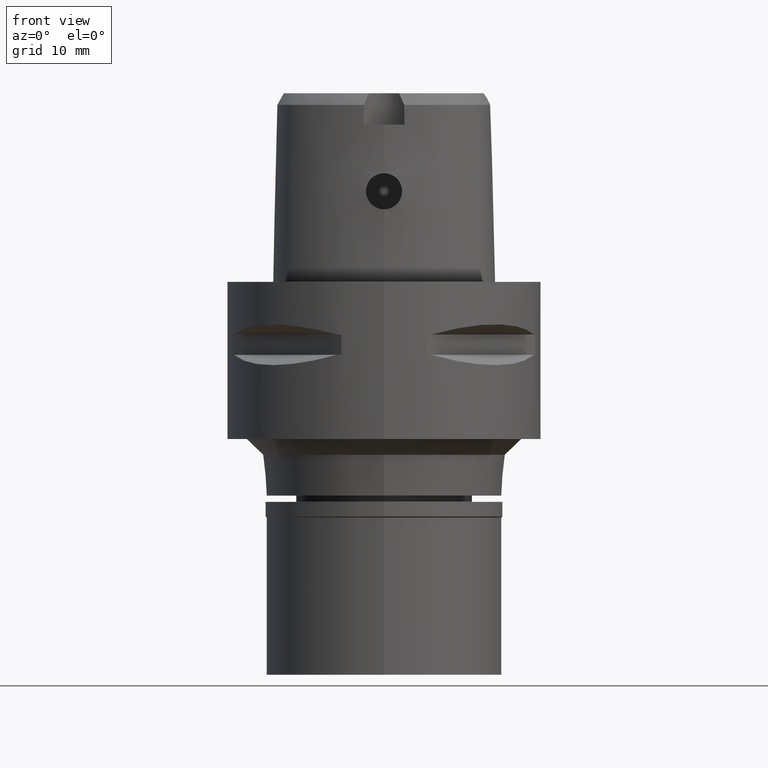
[diagram: clean part render]
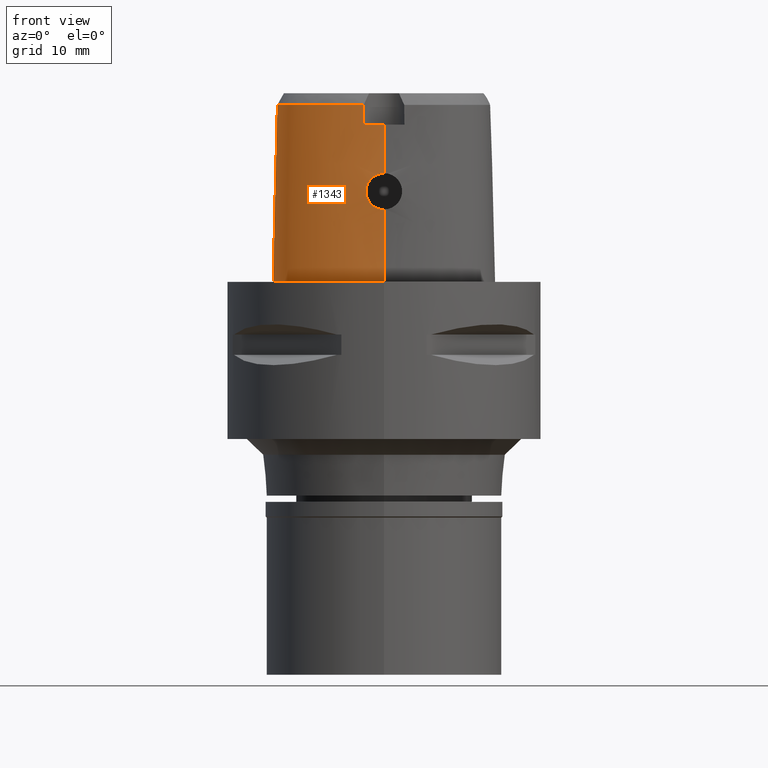
[diagram: same view with one face highlighted and labeled with its STEP entity id]
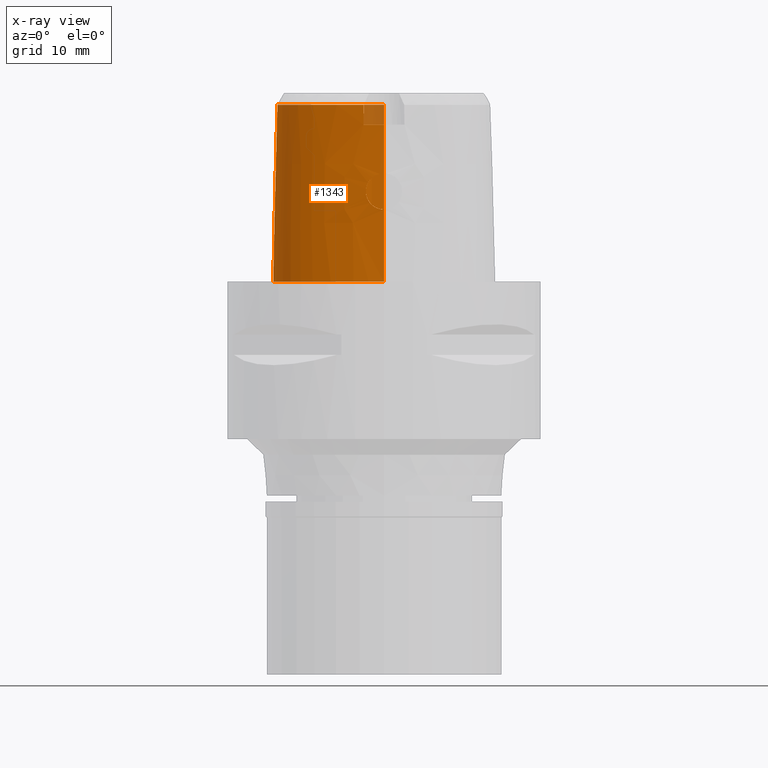
[diagram: x-ray of the same camera — body ghosted, the highlighted face saturated]
A machine part, front view. The second image highlights one B-rep face of the part: STEP entity #1343.
The next image is the same camera in x-ray: the body ghosted, the highlighted face saturated — about 2% of this face is hidden behind the body in this view.
In plain terms, the highlighted face is a freeform B-spline surface patch.
Its self-contained STEP definition (entity closure, byte-faithful):
#3 = CARTESIAN_POINT ( 'NONE',  ( -12.81132618910000076, -7.396622623712000966, 7.356785196705000196 ) ) ;
#9 = CARTESIAN_POINT ( 'NONE',  ( -2.603602034519999719, -12.50961198144999997, 20.00000000000000000 ) ) ;
#13 = CARTESIAN_POINT ( 'NONE',  ( -9.170754357849521199, 9.963637495875273586, 2.544722114234884702E-07 ) ) ;
#19 = CARTESIAN_POINT ( 'NONE',  ( -9.070417774769000019, -10.46386417451000028, 22.97118643052999687 ) ) ;
#25 = CARTESIAN_POINT ( 'NONE',  ( -1.969151562591273663, -12.81878448191198672, 10.31136768718369545 ) ) ;
#39 = CARTESIAN_POINT ( 'NONE',  ( -9.029359443559000553, 9.844403358273998705, 7.356785196705000196 ) ) ;
#46 = CARTESIAN_POINT ( 'NONE',  ( -0.9094609401181773523, -12.90997073725083055, 9.387431234174231420 ) ) ;
#76 = CARTESIAN_POINT ( 'NONE',  ( -14.05597388953954230, -4.368733592847993563, 2.544722114234884702E-07 ) ) ;
#152 = CARTESIAN_POINT ( 'NONE',  ( 0.5714334852117000096, -12.77845896517000135, 15.16398581362000009 ) ) ;
#168 = CARTESIAN_POINT ( 'NONE',  ( -1.745769949806743382, -12.61172391797737724, 19.99999964621428461 ) ) ;
#180 = CARTESIAN_POINT ( 'NONE',  ( -1.634303316923999994, 14.85806844625000167, -0.4504154202064000190 ) ) ;
#200 = CARTESIAN_POINT ( 'NONE',  ( -8.737913808020804751, 9.598635897784548732, 22.52071717950011731 ) ) ;
#231 = CARTESIAN_POINT ( 'NONE',  ( -13.60847657048246084, -2.623199557594069642, 22.52071717950011731 ) ) ;
#245 = CARTESIAN_POINT ( 'NONE',  ( -0.9448229129271795701, -12.80325335383371232, 13.59813410706257919 ) ) ;
#255 = CARTESIAN_POINT ( 'NONE',  ( -3.539803248252299639, 13.67924950902899006, 22.52071717950011731 ) ) ;
#266 = CARTESIAN_POINT ( 'NONE',  ( -3.534957195059000412, 13.66895452561000113, 22.97118643052999687 ) ) ;
#292 = CARTESIAN_POINT ( 'NONE',  ( -0.3709813349679000338, 14.59945308679999876, 15.16398581362000009 ) ) ;
#299 = CARTESIAN_POINT ( 'NONE',  ( -2.245603534414450042, -12.77547641080668228, 10.99707330927152427 ) ) ;
#314 = CARTESIAN_POINT ( 'NONE',  ( -10.45540628304999942, -9.534714902356999033, 22.97118643052999687 ) ) ;
#320 = CARTESIAN_POINT ( 'NONE',  ( -1.030987739343823817, -12.90333795298401753, 9.443720710652016237 ) ) ;
#331 = CARTESIAN_POINT ( 'NONE',  ( -13.79295327742000055, -2.621895083540000115, 15.16398581362000009 ) ) ;
#336 = CARTESIAN_POINT ( 'NONE',  ( -1.718104249315451248, -12.84797894397791040, 9.970099457365206419 ) ) ;
#347 = CARTESIAN_POINT ( 'NONE',  ( -12.97089750941041864, -7.488751168688340343, 2.544722114234884702E-07 ) ) ;
#358 = CARTESIAN_POINT ( 'NONE',  ( -13.56059764518999877, -5.684126879546000488, 7.356785196705000196 ) ) ;
#364 = CARTESIAN_POINT ( 'NONE',  ( -1.505001200655944560, -12.86943791852782759, 9.752156969248664709 ) ) ;
#381 = CARTESIAN_POINT ( 'NONE',  ( -7.165542351824000455, -12.04243712161000168, -0.4504154202064000190 ) ) ;
#386 = CARTESIAN_POINT ( 'NONE',  ( -1.123943696500318445, -12.89774608795634236, 9.492107695863102990 ) ) ;
#397 = CARTESIAN_POINT ( 'NONE',  ( -12.67101786763999982, 2.764037747060000161, 22.97118643052999687 ) ) ;
#533 = CARTESIAN_POINT ( 'NONE',  ( -13.19588017074667086, -5.576003004572317678, 22.52071717950011731 ) ) ;
#570 = CARTESIAN_POINT ( 'NONE',  ( -2.271431586346507991, -12.75091221571057609, 11.86913203842019904 ) ) ;
#600 = CARTESIAN_POINT ( 'NONE',  ( -2.117617568217390556, -12.75277667900068224, 12.39764604230459533 ) ) ;
#608 = ORIENTED_EDGE ( 'NONE', *, *, #1835, .T. ) ;
#617 = ORIENTED_EDGE ( 'NONE', *, *, #3885, .F. ) ;
#629 = CARTESIAN_POINT ( 'NONE',  ( -0.8723905964265251667, -12.80534818375293504, 13.62814720800847468 ) ) ;
#638 = CARTESIAN_POINT ( 'NONE',  ( -3.014424021963129086, -12.39773933600501188, 22.52071717950011731 ) ) ;
#648 = CARTESIAN_POINT ( 'NONE',  ( 0.2912660280116999845, 14.57955075905000086, 15.16398581362000009 ) ) ;
#653 = CARTESIAN_POINT ( 'NONE',  ( -0.5819386986818497753, -12.81237603767194777, 13.72652564638335093 ) ) ;
#672 = CARTESIAN_POINT ( 'NONE',  ( -13.67906215461000130, -4.314970299245000085, 15.16398581362000009 ) ) ;
#680 = CARTESIAN_POINT ( 'NONE',  ( -2.128793241413423409, -12.79612817070244546, 10.62919246598732315 ) ) ;
#688 = CARTESIAN_POINT ( 'NONE',  ( -2.568703252653000479, -12.45023756080000155, 22.52071717950000007 ) ) ;
#693 = CARTESIAN_POINT ( 'NONE',  ( -13.37282164521999839, -5.628458944319000068, 15.16398581362000009 ) ) ;
#699 = CARTESIAN_POINT ( 'NONE',  ( -1.673318493212271330, -12.85259581698450049, 9.921828725747491973 ) ) ;
#706 = CARTESIAN_POINT ( 'NONE',  ( -6.372642517123766837, 12.66899061996103626, 2.544722114234884702E-07 ) ) ;
#715 = CARTESIAN_POINT ( 'NONE',  ( -11.34294637552000040, 6.548859638343000000, 7.356785196705000196 ) ) ;
#720 = CARTESIAN_POINT ( 'NONE',  ( -1.924883428630888016, -12.82440318964656178, 10.24105807494909115 ) ) ;
#726 = CARTESIAN_POINT ( 'NONE',  ( -13.34121470783906283, -6.760328903660714595, 2.544722114234884702E-07 ) ) ;
#736 = CARTESIAN_POINT ( 'NONE',  ( -10.69740336607000053, -9.843145438499998789, 7.356785196705000196 ) ) ;
#741 = CARTESIAN_POINT ( 'NONE',  ( -2.100781098110155565, -12.80050632932169208, 10.56139995706970680 ) ) ;
#758 = CARTESIAN_POINT ( 'NONE',  ( -3.941817108171000061, -12.35544361517000134, 22.97118643052999687 ) ) ;
#782 = CARTESIAN_POINT ( 'NONE',  ( -1.826504515500986470, -12.83620081350063735, 10.10016303675814875 ) ) ;
#787 = CARTESIAN_POINT ( 'NONE',  ( -11.50301489618418316, 6.641268746803844714, 2.544722114234884702E-07 ) ) ;
#795 = CARTESIAN_POINT ( 'NONE',  ( 0.8491476807201999710, -12.57247798927999938, 22.97118643052999687 ) ) ;
#836 = CARTESIAN_POINT ( 'NONE',  ( -1.260417588442999891E-08, -12.66301535847000004, 19.99999996345999875 ) ) ;
#860 = CARTESIAN_POINT ( 'NONE',  ( 0.8715805128494999998, -13.15757747211999984, -0.4504154202064000190 ) ) ;
#903 = B_SPLINE_CURVE_WITH_KNOTS ( 'NONE', 3,
 ( #836, #3447, #168, #1623 ),
 .UNSPECIFIED., .F., .F.,
 ( 4, 4 ),
 ( 0.0000000000000000000, 1.000000000000000000 ),
 .UNSPECIFIED. ) ;
#925 = ORIENTED_EDGE ( 'NONE', *, *, #2914, .T. ) ;
#926 = CARTESIAN_POINT ( 'NONE',  ( -2.075653757163897772, -12.75436700818544544, 12.49185155364052413 ) ) ;
#951 = CARTESIAN_POINT ( 'NONE',  ( -1.531093129367631533, -12.78047425280173321, 13.21704160996870669 ) ) ;
#962 = CARTESIAN_POINT ( 'NONE',  ( -13.44334616472842114, -0.2854647376911818579, 22.52071717950011731 ) ) ;
#977 = CARTESIAN_POINT ( 'NONE',  ( 0.4485687364316999770, 14.76550217421000077, 7.356785196705000196 ) ) ;
#992 = CARTESIAN_POINT ( 'NONE',  ( -12.48241503204998004, -7.206725678149864756, 22.52071717950011731 ) ) ;
#1000 = CARTESIAN_POINT ( 'NONE',  ( 0.3070131592349999994, 14.96964727000000117, -0.4504154202064000190 ) ) ;
#1005 = VERTEX_POINT ( 'NONE', #3464 ) ;
#1006 = CARTESIAN_POINT ( 'NONE',  ( -2.227964660006181319, -12.74977029743578427, 12.09060403548147278 ) ) ;
#1022 = CARTESIAN_POINT ( 'NONE',  ( -11.84499494414000154, -9.036543430020000045, -0.4504154202064000190 ) ) ;
#1028 = CARTESIAN_POINT ( 'NONE',  ( -2.140846386073651963, -12.79421935293861878, 10.65923901443731836 ) ) ;
#1048 = CARTESIAN_POINT ( 'NONE',  ( -6.014683975638999591, 12.21358538580999920, 22.97118643052999687 ) ) ;
#1066 = CARTESIAN_POINT ( 'NONE',  ( -3.782076371046788399, 14.19393593168008927, 2.544722114234884702E-07 ) ) ;
#1072 = CARTESIAN_POINT ( 'NONE',  ( -13.62540794143000156, -0.2530731246365999776, 15.16398581362000009 ) ) ;
#1093 = CARTESIAN_POINT ( 'NONE',  ( -12.81560164108000066, -6.526604537076999613, 22.97118643052999687 ) ) ;
#1117 = CARTESIAN_POINT ( 'NONE',  ( -12.98066718793999996, -7.494391695232000217, -0.4504154202064000190 ) ) ;
#1145 = CARTESIAN_POINT ( 'NONE',  ( -1.640618828100756543, -12.85590380833830793, 9.888026571611279181 ) ) ;
#1150 = CARTESIAN_POINT ( 'NONE',  ( -7.161686383287101165, -12.03179218148533280, 2.544722114234884702E-07 ) ) ;
#1174 = EDGE_CURVE ( 'NONE', #1005, #4181, #4460, .T. ) ;
#1188 = EDGE_CURVE ( 'NONE', #4631, #4119, #2751, .T. ) ;
#1205 = CARTESIAN_POINT ( 'NONE',  ( -1.260417588442999891E-08, -12.66301535847000004, 19.99999996345999875 ) ) ;
#1236 = ORIENTED_EDGE ( 'NONE', *, *, #1174, .F. ) ;
#1284 = CARTESIAN_POINT ( 'NONE',  ( -6.379661316097998913, 12.67792013950000118, -0.4504154202064000190 ) ) ;
#1290 = CARTESIAN_POINT ( 'NONE',  ( -1.572442839314113661, -12.77847914798856088, 13.17862367268233648 ) ) ;
#1298 = CARTESIAN_POINT ( 'NONE',  ( -6.968888528386277592, -11.49954675419571082, 22.52071717950011731 ) ) ;
#1317 = CARTESIAN_POINT ( 'NONE',  ( -2.100682809757366432, -12.75339965040591750, 12.43682748920701542 ) ) ;
#1342 = CARTESIAN_POINT ( 'NONE',  ( -0.5074042838810919331, -12.81372059559767784, 13.74459566185632120 ) ) ;
#1343 = ADVANCED_FACE ( 'NONE', ( #3459 ), #3713, .T. ) ;
#1394 = CARTESIAN_POINT ( 'NONE',  ( -2.194313938148278798, -12.78526572574067899, 10.80969661529742076 ) ) ;
#1399 = B_SPLINE_CURVE_WITH_KNOTS ( 'NONE', 3,
 ( #3830, #638, #3475, #1298, #3507, #1984, #4240, #2383, #992, #2417, #533, #3906, #231, #962, #3198, #3856, #200, #1687, #255, #1710, #3166, #4654 ),
 .UNSPECIFIED., .F., .F.,
 ( 4, 1, 1, 1, 1, 1, 1, 1, 1, 1, 1, 1, 1, 1, 1, 1, 1, 1, 1, 4 ),
 ( 0.0000000000000000000, 0.03040433083226065647, 0.1185493916653934249, 0.1626219220818010958, 0.2066944524984203613, 0.2507669829149338780, 0.2728032481231377204, 0.2948395133313415073, 0.3168757785396512094, 0.3389120437478551073, 0.3829845741644744006, 0.4270571045808820854, 0.4711296349973955744, 0.5592746958304226634, 0.6474197566634495304, 0.7355648174964765085, 0.8237098783293977933, 0.9118549391624987122, 0.9559274695790016541, 1.000000000000000000 ),
 .UNSPECIFIED. ) ;
#1409 = CARTESIAN_POINT ( 'NONE',  ( -7.031868851399000420, -11.67341273911000066, 15.16398581362000009 ) ) ;
#1432 = CARTESIAN_POINT ( 'NONE',  ( -12.64198519026999890, -7.298853552193000027, 15.16398581362000009 ) ) ;
#1457 = CARTESIAN_POINT ( 'NONE',  ( -12.37623261160999988, -8.065311685024999733, 7.356785196705000196 ) ) ;
#1462 = CARTESIAN_POINT ( 'NONE',  ( -1.635013697133385291, -12.85646650681847092, 9.882332749081408352 ) ) ;
#1467 = CARTESIAN_POINT ( 'NONE',  ( -0.5439938568794497886, 14.96299999364913980, 2.544722114234884702E-07 ) ) ;
#1472 = CARTESIAN_POINT ( 'NONE',  ( -2.522154460911999787E-13, -12.93301545397000041, 9.199999999999999289 ) ) ;
#1476 = CARTESIAN_POINT ( 'NONE',  ( -12.06000614503999913, -7.835334317527000714, 22.97118643052999687 ) ) ;
#1500 = CARTESIAN_POINT ( 'NONE',  ( -9.179411194527000717, 9.970937549493001484, -0.4504154202064000190 ) ) ;
#1507 = CARTESIAN_POINT ( 'NONE',  ( -1.754951805176105051, -12.84404327703087034, 10.01286862426010416 ) ) ;
#1547 = ORIENTED_EDGE ( 'NONE', *, *, #1188, .F. ) ;
#1623 = CARTESIAN_POINT ( 'NONE',  ( -2.603602034519999719, -12.50961198144999997, 20.00000000000000000 ) ) ;
#1644 = CARTESIAN_POINT ( 'NONE',  ( -0.7499755959852825171, -12.80864488942805224, 13.67492269767374147 ) ) ;
#1649 = CARTESIAN_POINT ( 'NONE',  ( -1.930288390703999815E-12, -13.16299999999999848, 3.892626961507000177E-13 ) ) ;
#1687 = CARTESIAN_POINT ( 'NONE',  ( -6.021703609490128173, 12.22251596750355418, 22.52071717950011731 ) ) ;
#1700 = VERTEX_POINT ( 'NONE', #3905 ) ;
#1701 = CARTESIAN_POINT ( 'NONE',  ( -2.299064434898544729, -12.75538865175285075, 11.57511939275938673 ) ) ;
#1710 = CARTESIAN_POINT ( 'NONE',  ( -1.515894611552606852, 14.29262276281993138, 22.52071717950011731 ) ) ;
#1730 = CARTESIAN_POINT ( 'NONE',  ( -2.052152098439464556, -12.75534016868717657, 12.53920447716560105 ) ) ;
#1770 = CARTESIAN_POINT ( 'NONE',  ( -7.098705601611999150, -11.85792493035999939, 7.356785196705000196 ) ) ;
#1775 = CARTESIAN_POINT ( 'NONE',  ( -1.871347986755833803, -12.83101099829894665, 10.16070205657113057 ) ) ;
#1789 = CARTESIAN_POINT ( 'NONE',  ( -14.06716929411999928, -4.370330523290000713, -0.4504154202064000190 ) ) ;
#1804 = CARTESIAN_POINT ( 'NONE',  ( -12.52522392243174743, -8.173666402501073236, 2.544722114234884702E-07 ) ) ;
#1815 = CARTESIAN_POINT ( 'NONE',  ( -11.51281501556999842, 6.646926450714000012, -0.4504154202064000190 ) ) ;
#1821 = CARTESIAN_POINT ( 'NONE',  ( -0.9319488030639994092, -12.90881411230994935, 9.397158616747278259 ) ) ;
#1828 = CARTESIAN_POINT ( 'NONE',  ( -14.00068087386010518, -0.1863062511203961158, 2.544722114234884702E-07 ) ) ;
#1835 = EDGE_CURVE ( 'NONE', #3162, #3497, #3014, .T. ) ;
#1838 = CARTESIAN_POINT ( 'NONE',  ( -13.48500858485999920, -4.287290187222000171, 22.97118643052999687 ) ) ;
#1855 = CARTESIAN_POINT ( 'NONE',  ( -6.965032101187000002, -11.48890054786999926, 22.97118643052999687 ) ) ;
#1938 = CARTESIAN_POINT ( 'NONE',  ( 0.5764111311874000609, -12.97358038027000049, 7.356785196705000196 ) ) ;
#1984 = CARTESIAN_POINT ( 'NONE',  ( -10.46238780242477340, -9.543613000371195199, 22.52071717950011731 ) ) ;
#2051 = CARTESIAN_POINT ( 'NONE',  ( -2.292850093586978222, -12.75329599771171551, 11.68494147239039904 ) ) ;
#2071 = CARTESIAN_POINT ( 'NONE',  ( -0.3608217372043999727, 14.40386510868999892, 22.97118643052999687 ) ) ;
#2100 = CARTESIAN_POINT ( 'NONE',  ( -2.295509092785640082, -12.75393387474881024, 11.64825047697175542 ) ) ;
#2119 = CARTESIAN_POINT ( 'NONE',  ( -11.70289710752000012, -8.901758611753999517, 7.356785196705000196 ) ) ;
#2135 = CARTESIAN_POINT ( 'NONE',  ( -11.41870143429000173, -8.632188975222000238, 22.97118643052999687 ) ) ;
#2156 = EDGE_CURVE ( 'NONE', #4181, #3497, #4310, .T. ) ;
#2157 = CARTESIAN_POINT ( 'NONE',  ( -8.729255941623998538, 9.591334975835000165, 22.97118643052999687 ) ) ;
#2164 = CARTESIAN_POINT ( 'NONE',  ( -1.186927697901408951, -12.89362213065004248, 9.528479479259287288 ) ) ;
#2183 = CARTESIAN_POINT ( 'NONE',  ( -9.263792083772999675, -10.80433664739000044, 7.356785196705000196 ) ) ;
#2203 = CARTESIAN_POINT ( 'NONE',  ( -14.01182760110999936, -0.1843230755057999881, -0.4504154202064000190 ) ) ;
#2212 = ORIENTED_EDGE ( 'NONE', *, *, #3571, .T. ) ;
#2227 = CARTESIAN_POINT ( 'NONE',  ( -1.936335331577908825, -12.82296972919318812, 10.25874399572378337 ) ) ;
#2234 = CARTESIAN_POINT ( 'NONE',  ( -1.930288390703999815E-12, -13.16299999999999848, 3.892626961507000177E-13 ) ) ;
#2250 = ORIENTED_EDGE ( 'NONE', *, *, #4567, .T. ) ;
#2309 = CARTESIAN_POINT ( 'NONE',  ( 0.8641029021396999799, -12.96254431117000117, 7.356785196705000196 ) ) ;
#2310 = CARTESIAN_POINT ( 'NONE',  ( -4.211779061779190698E-09, -12.71469678372942980, 17.93333361273020543 ) ) ;
#2347 = CARTESIAN_POINT ( 'NONE',  ( 0.2833924623999999892, 14.38450250357999849, 22.97118643052999687 ) ) ;
#2375 = CARTESIAN_POINT ( 'NONE',  ( -1.150408608482918149, -12.79622784198479302, 13.49197783700753206 ) ) ;
#2383 = CARTESIAN_POINT ( 'NONE',  ( -12.06912915253891860, -7.841969072900538684, 22.52071717950011731 ) ) ;
#2403 = CARTESIAN_POINT ( 'NONE',  ( -1.611877499992751872, -12.77653505885875873, 13.14081569331372457 ) ) ;
#2417 = CARTESIAN_POINT ( 'NONE',  ( -12.82590901148325813, -6.531187915556277979, 22.52071717950011731 ) ) ;
#2434 = CARTESIAN_POINT ( 'NONE',  ( -1.011878398766373977, -12.80112054547332257, 13.56692882181785897 ) ) ;
#2457 = CARTESIAN_POINT ( 'NONE',  ( -1.965252258605612035, -12.75916002378914804, 12.69725596527202072 ) ) ;
#2472 = CARTESIAN_POINT ( 'NONE',  ( -12.85560852220000072, 2.830737009496999690, 15.16398581362000009 ) ) ;
#2479 = CARTESIAN_POINT ( 'NONE',  ( -2.282166019910152777, -12.75165090099520704, 11.79525896608643265 ) ) ;
#2495 = CARTESIAN_POINT ( 'NONE',  ( -13.74837364515999916, -5.739794814771999043, -0.4504154202064000190 ) ) ;
#2503 = CARTESIAN_POINT ( 'NONE',  ( -1.653748280665647163, -12.85457989003768375, 9.901499109432398527 ) ) ;
#2515 = CARTESIAN_POINT ( 'NONE',  ( -13.98872590911999936, -2.620510733599000108, 7.356785196705000196 ) ) ;
#2522 = CARTESIAN_POINT ( 'NONE',  ( -2.071380972957955979, -12.80488926460895804, 10.49747195909083430 ) ) ;
#2529 = CARTESIAN_POINT ( 'NONE',  ( 1.661261531538999982E-10, 14.96299999994999830, 3.899103262484000620E-13 ) ) ;
#2536 = CARTESIAN_POINT ( 'NONE',  ( -11.56079927090999959, -8.766973793488000766, 15.16398581362000009 ) ) ;
#2549 = CARTESIAN_POINT ( 'NONE',  ( -9.354901130056102687, -10.96475155694815307, 2.544722114234884702E-07 ) ) ;
#2562 = CARTESIAN_POINT ( 'NONE',  ( -13.04019917675000073, 2.897436271933999663, 7.356785196705000196 ) ) ;
#2568 = CARTESIAN_POINT ( 'NONE',  ( -2.592184028741372881, -12.48966611859522047, 20.84023905983333336 ) ) ;
#2574 = CARTESIAN_POINT ( 'NONE',  ( -1.631981570849394547, 14.84698124374086525, 2.544722114234884702E-07 ) ) ;
#2595 = CARTESIAN_POINT ( 'NONE',  ( -4.043386006603696181, -12.92392499370224002, 2.544722114234884702E-07 ) ) ;
#2650 = CARTESIAN_POINT ( 'NONE',  ( 0.8566252914299000709, -12.76751115023000160, 15.16398581362000009 ) ) ;
#2715 = EDGE_LOOP ( 'NONE', ( #3915, #1236, #617, #2212, #1547, #2250, #925, #608 ) ) ;
#2751 = B_SPLINE_CURVE_WITH_KNOTS ( 'NONE', 3,
 ( #4378, #3279, #2568, #9 ),
 .UNSPECIFIED., .F., .F.,
 ( 4, 4 ),
 ( 0.0000000000000000000, 1.000000000000000000 ),
 .UNSPECIFIED. ) ;
#2797 = CARTESIAN_POINT ( 'NONE',  ( -0.8152708980165712660, -12.80693898155979049, 13.65082120268139043 ) ) ;
#2801 = CARTESIAN_POINT ( 'NONE',  ( -2.522154460911999787E-13, -12.93301545397000041, 9.199999999999999289 ) ) ;
#2825 = CARTESIAN_POINT ( 'NONE',  ( -0.1401305126056105743, -12.81802318095999915, 13.79999999999999716 ) ) ;
#2831 = VERTEX_POINT ( 'NONE', #3728 ) ;
#2846 = CARTESIAN_POINT ( 'NONE',  ( -2.176051754930679927, -12.78846570138717453, 10.75327920937323789 ) ) ;
#2861 = CARTESIAN_POINT ( 'NONE',  ( -4.045377554778999851, -12.93507169381999944, -0.4504154202064000190 ) ) ;
#2888 = CARTESIAN_POINT ( 'NONE',  ( -1.039641953608000158, -12.80928528392000132, 15.16398581362000009 ) ) ;
#2895 = CARTESIAN_POINT ( 'NONE',  ( -0.5889969291345801272, -12.92583349803552295, 9.254553718819456876 ) ) ;
#2907 = CARTESIAN_POINT ( 'NONE',  ( -13.81861777126999868, -0.2186981000711999967, 7.356785196705000196 ) ) ;
#2913 = CARTESIAN_POINT ( 'NONE',  ( -2.522154460911999787E-13, -12.93301545397000041, 9.199999999999999289 ) ) ;
#2914 = EDGE_CURVE ( 'NONE', #2831, #3162, #4587, .T. ) ;
#2923 = CARTESIAN_POINT ( 'NONE',  ( -11.83679698739570618, -9.028767378419097156, 2.544722114234884702E-07 ) ) ;
#2930 = CARTESIAN_POINT ( 'NONE',  ( -9.360479238274999503, -10.97457288383000140, -0.4504154202064000190 ) ) ;
#2956 = CARTESIAN_POINT ( 'NONE',  ( -11.17307773547999972, 6.450792825970999012, 15.16398581362000009 ) ) ;
#2970 = CARTESIAN_POINT ( 'NONE',  ( -13.21414036445336393, 2.960287497826546321, 2.544722114234884702E-07 ) ) ;
#3014 = B_SPLINE_CURVE_WITH_KNOTS ( 'NONE', 3,
 ( #2529, #1467, #2574, #1066, #706, #13, #787, #2970, #1828, #3285, #76, #3671, #726, #347, #1804, #2923, #4429, #2549, #1150, #2595, #4060, #2234 ),
 .UNSPECIFIED., .F., .F.,
 ( 4, 1, 1, 1, 1, 1, 1, 1, 1, 1, 1, 1, 1, 1, 1, 1, 1, 1, 1, 4 ),
 ( 0.0000000000000000000, 0.04166666667073999630, 0.08333333333723000336, 0.1666666666703000010, 0.2500000000031999958, 0.3333333333362000217, 0.4166666666691999921, 0.5000000000022000179, 0.5416666666687000031, 0.5833333333350999572, 0.6250000000016999735, 0.6458333333349000061, 0.6666666666682000697, 0.6875000000013999912, 0.7083333333346000238, 0.7500000000011000090, 0.7916666666677000253, 0.8333333333340999793, 0.9166666666671999808, 1.000000000000000000 ),
 .UNSPECIFIED. ) ;
#3017 = CARTESIAN_POINT ( 'NONE',  ( -1.030579239326999907, -12.61390738450000093, 22.97118643052999687 ) ) ;
#3064 = CARTESIAN_POINT ( 'NONE',  ( -2.603602034519999719, -12.50961198144999997, 20.00000000000000000 ) ) ;
#3098 = CARTESIAN_POINT ( 'NONE',  ( -3.702933630270999643, 14.02580463564999924, 7.356785196705000196 ) ) ;
#3128 = CARTESIAN_POINT ( 'NONE',  ( -1.594059741033999833, 14.66589037800000028, 7.356785196705000196 ) ) ;
#3133 = CARTESIAN_POINT ( 'NONE',  ( -0.2855776774823178266, -12.81694753461941794, 13.78716430547175520 ) ) ;
#3156 = CARTESIAN_POINT ( 'NONE',  ( -2.299962475646547766, -12.75624581463247154, 11.53706806114475114 ) ) ;
#3162 = VERTEX_POINT ( 'NONE', #3404 ) ;
#3166 = CARTESIAN_POINT ( 'NONE',  ( -0.5039711950889876890, 14.40001990034896551, 22.52071717950011731 ) ) ;
#3178 = CARTESIAN_POINT ( 'NONE',  ( -6.136343089125000816, 12.36836363704000163, 15.16398581362000009 ) ) ;
#3186 = CARTESIAN_POINT ( 'NONE',  ( -2.110909525984960844, -12.75302106767308530, 12.41330912378776929 ) ) ;
#3198 = CARTESIAN_POINT ( 'NONE',  ( -12.68166860123669615, 2.767886241324277741, 22.52071717950011731 ) ) ;
#3211 = CARTESIAN_POINT ( 'NONE',  ( -2.227644355449671654, -12.77915819796579555, 10.92230603779528053 ) ) ;
#3223 = CARTESIAN_POINT ( 'NONE',  ( -12.47264419142999969, -7.201084480672999888, 22.97118643052999687 ) ) ;
#3227 = CARTESIAN_POINT ( 'NONE',  ( -0.9848863495905478826, -12.90598536776490235, 9.421068656341663683 ) ) ;
#3244 = CARTESIAN_POINT ( 'NONE',  ( -1.048704667889000186, -13.00466318333999993, 7.356785196705000196 ) ) ;
#3272 = CARTESIAN_POINT ( 'NONE',  ( -13.17288111525000005, -6.685476003704000192, 7.356785196705000196 ) ) ;
#3279 = CARTESIAN_POINT ( 'NONE',  ( -2.580556340274079208, -12.46988384530705041, 21.68047811966666671 ) ) ;
#3285 = CARTESIAN_POINT ( 'NONE',  ( -14.17320395953311341, -2.619206250045872597, 2.544722114234884702E-07 ) ) ;
#3293 = CARTESIAN_POINT ( 'NONE',  ( -14.18449854081999995, -2.619126383658000101, -0.4504154202064000190 ) ) ;
#3313 = CARTESIAN_POINT ( 'NONE',  ( -3.976337257039999518, -12.54865297471999952, 15.16398581362000009 ) ) ;
#3402 = CARTESIAN_POINT ( 'NONE',  ( 0.5813887771631000012, -13.16870179536999963, -0.4504154202064000190 ) ) ;
#3404 = CARTESIAN_POINT ( 'NONE',  ( 1.661261531538999982E-10, 14.96299999994999830, 3.899103262484000620E-13 ) ) ;
#3440 = B_SPLINE_CURVE_WITH_KNOTS ( 'NONE', 3,
 ( #1205, #2310, #4481, #3759 ),
 .UNSPECIFIED., .F., .F.,
 ( 4, 4 ),
 ( 0.0000000000000000000, 1.000000000000000000 ),
 .UNSPECIFIED. ) ;
#3447 = CARTESIAN_POINT ( 'NONE',  ( -0.8728571771474927798, -12.66303360443751735, 19.99999964621428461 ) ) ;
#3459 = FACE_OUTER_BOUND ( 'NONE', #2715, .T. ) ;
#3462 = DIRECTION ( 'NONE',  ( 1.015890747470026227E-11, 0.02499051293165070395, -0.9996876883624270516 ) ) ;
#3464 = CARTESIAN_POINT ( 'NONE',  ( 0.0000000000000000000, -12.81802318095999915, 13.79999999999999893 ) ) ;
#3475 = CARTESIAN_POINT ( 'NONE',  ( -4.736458213768273140, -12.13940339378071265, 22.52071717950011731 ) ) ;
#3489 = CARTESIAN_POINT ( 'NONE',  ( -0.3913005304948000140, 14.99062904301999843, -0.4504154202064000190 ) ) ;
#3496 = CARTESIAN_POINT ( 'NONE',  ( 0.0000000000000000000, -12.81802318095999915, 13.79999999999999893 ) ) ;
#3497 = VERTEX_POINT ( 'NONE', #1649 ) ;
#3498 = DIRECTION ( 'NONE',  ( -1.823422677067930275E-13, -0.02499051295424905769, -0.9996876883618621701 ) ) ;
#3507 = CARTESIAN_POINT ( 'NONE',  ( -9.075996546496524431, -10.47368666962574935, 22.52071717950011731 ) ) ;
#3516 = CARTESIAN_POINT ( 'NONE',  ( -3.786921847876999703, 14.20422969067000096, -0.4504154202064000190 ) ) ;
#3523 = CARTESIAN_POINT ( 'NONE',  ( -2.120426573750170185, -12.75267573305423596, 12.39100281169534234 ) ) ;
#3542 = CARTESIAN_POINT ( 'NONE',  ( -1.513572589253999956, 14.28153424151999928, 22.97118643052999687 ) ) ;
#3547 = CARTESIAN_POINT ( 'NONE',  ( -0.6939323844612986791, -12.80995583340564004, 13.69316554814096421 ) ) ;
#3569 = CARTESIAN_POINT ( 'NONE',  ( -0.3811409327313999840, 14.79504106490999860, 7.356785196705000196 ) ) ;
#3571 = EDGE_CURVE ( 'NONE', #1700, #4119, #903, .T. ) ;
#3572 = CARTESIAN_POINT ( 'NONE',  ( -6.273120490105999997E-11, 14.40001989798000182, 22.52071729252999788 ) ) ;
#3576 = CARTESIAN_POINT ( 'NONE',  ( -2.300143802991294173, -12.76057655722843975, 11.36375986572100238 ) ) ;
#3592 = CARTESIAN_POINT ( 'NONE',  ( -12.99424137816999902, -6.606040270391000391, 15.16398581362000009 ) ) ;
#3611 = CARTESIAN_POINT ( 'NONE',  ( -10.81840190758000020, -9.997360706570999511, -0.4504154202064000190 ) ) ;
#3616 = CARTESIAN_POINT ( 'NONE',  ( -1.376879184709419723, -12.88006211686756686, 9.651496333327152399 ) ) ;
#3632 = CARTESIAN_POINT ( 'NONE',  ( -13.43219811159000088, -0.2874481492018999829, 22.97118643052999687 ) ) ;
#3639 = CARTESIAN_POINT ( 'NONE',  ( -1.918338618982707633, -12.82521576174282529, 10.23111646875308622 ) ) ;
#3661 = CARTESIAN_POINT ( 'NONE',  ( -9.167104929271001623, -10.63410041094999947, 15.16398581362000009 ) ) ;
#3666 = CARTESIAN_POINT ( 'NONE',  ( -1.953201304415306705, -12.82084256532890798, 10.28519075025628560 ) ) ;
#3671 = CARTESIAN_POINT ( 'NONE',  ( -13.73754040827202871, -5.736583201309874980, 2.544722114234884702E-07 ) ) ;
#3678 = CARTESIAN_POINT ( 'NONE',  ( -13.18504564526000067, -5.572791009092999737, 22.97118643052999687 ) ) ;
#3713 = B_SPLINE_SURFACE_WITH_KNOTS ( 'NONE', 3, 3, ( 
 ( #4303, #977, #3894, #3839 ),
 ( #1000, #4278, #648, #2347 ),
 ( #3489, #3569, #292, #2071 ),
 ( #180, #3128, #4662, #3542 ),
 ( #3516, #3098, #4555, #266 ),
 ( #1284, #4584, #3178, #1048 ),
 ( #1500, #39, #3976, #2157 ),
 ( #1815, #715, #2956, #3998 ),
 ( #4349, #2562, #2472, #397 ),
 ( #2203, #2907, #1072, #3632 ),
 ( #3293, #2515, #331, #4371 ),
 ( #1789, #4394, #672, #1838 ),
 ( #2495, #358, #693, #3678 ),
 ( #4701, #3272, #3592, #1093 ),
 ( #1117, #3, #1432, #3223 ),
 ( #4028, #1457, #3938, #1476 ),
 ( #1022, #2119, #2536, #2135 ),
 ( #3611, #736, #4679, #314 ),
 ( #2930, #2183, #3661, #19 ),
 ( #381, #1770, #1409, #1855 ),
 ( #2861, #4325, #3313, #758 ),
 ( #3957, #3244, #2888, #3017 ),
 ( #3402, #1938, #152, #3740 ),
 ( #860, #2309, #2650, #795 ) ),
 .UNSPECIFIED., .F., .F., .F.,
 ( 4, 1, 1, 1, 1, 1, 1, 1, 1, 1, 1, 1, 1, 1, 1, 1, 1, 1, 1, 1, 1, 4 ),
 ( 4, 4 ),
 ( -0.01174028709110000110, 0.0000000000000000000, 0.04166666667073999630, 0.08333333333723000336, 0.1666666666703000010, 0.2500000000031999958, 0.3333333333362000217, 0.4166666666691999921, 0.5000000000022000179, 0.5416666666687000031, 0.5833333333350999572, 0.6250000000016999735, 0.6458333333349000061, 0.6666666666682000697, 0.6875000000013999912, 0.7083333333346000238, 0.7500000000011000090, 0.7916666666677000253, 0.8333333333340999793, 0.9166666666671999808, 1.000000000000000000, 1.017964572395999800 ),
 ( -4.153313873725000261E-08, 1.000002118190000067 ),
 .UNSPECIFIED. ) ;
#3728 = CARTESIAN_POINT ( 'NONE',  ( -6.273120490105999997E-11, 14.40001989798000182, 22.52071729252999788 ) ) ;
#3740 = CARTESIAN_POINT ( 'NONE',  ( 0.5664558392358999273, -12.58333755008000132, 22.97118643052999687 ) ) ;
#3759 = CARTESIAN_POINT ( 'NONE',  ( 0.0000000000000000000, -12.81802318095999915, 13.79999999999999893 ) ) ;
#3830 = CARTESIAN_POINT ( 'NONE',  ( -2.568703252653000479, -12.45023756080000155, 22.52071717950000007 ) ) ;
#3839 = CARTESIAN_POINT ( 'NONE',  ( 0.4248031090311000235, 14.37590362233000008, 22.97118643052999687 ) ) ;
#3845 = CARTESIAN_POINT ( 'NONE',  ( -1.115229725332412825, -12.79751522695110033, 13.51191098754959974 ) ) ;
#3856 = CARTESIAN_POINT ( 'NONE',  ( -11.01301038052711156, 6.358384390486584437, 22.52071717950011731 ) ) ;
#3873 = CARTESIAN_POINT ( 'NONE',  ( -2.002296320555181364, -12.75747848527826100, 12.63397802741203435 ) ) ;
#3885 = EDGE_CURVE ( 'NONE', #1700, #1005, #3440, .T. ) ;
#3894 = CARTESIAN_POINT ( 'NONE',  ( 0.4366859227314000558, 14.57070289826999954, 15.16398581362000009 ) ) ;
#3899 = CARTESIAN_POINT ( 'NONE',  ( -1.841838764608476842, -12.76497262167227298, 12.88570671879769236 ) ) ;
#3905 = CARTESIAN_POINT ( 'NONE',  ( -1.260417588442999891E-08, -12.66301535847000004, 19.99999996345999875 ) ) ;
#3906 = CARTESIAN_POINT ( 'NONE',  ( -13.49620532111852711, -4.288887307616780831, 22.52071717950011731 ) ) ;
#3915 = ORIENTED_EDGE ( 'NONE', *, *, #2156, .F. ) ;
#3921 = CARTESIAN_POINT ( 'NONE',  ( -0.8432163855915287831, -12.80617006249601530, 13.63988004449705471 ) ) ;
#3938 = CARTESIAN_POINT ( 'NONE',  ( -12.21811937831999906, -7.950323001276000667, 15.16398581362000009 ) ) ;
#3945 = CARTESIAN_POINT ( 'NONE',  ( -2.133369772113715257, -12.79540785461998809, 10.64044447588278430 ) ) ;
#3949 = VECTOR ( 'NONE', #3498, 1000.000000000000000 ) ;
#3957 = CARTESIAN_POINT ( 'NONE',  ( -1.057767382170999859, -13.20004108276999943, -0.4504154202064000190 ) ) ;
#3976 = CARTESIAN_POINT ( 'NONE',  ( -8.879307692591998702, 9.717869167055001256, 15.16398581362000009 ) ) ;
#3982 = CARTESIAN_POINT ( 'NONE',  ( -2.018817522271043607, -12.81220052564507483, 10.39736850500416310 ) ) ;
#3998 = CARTESIAN_POINT ( 'NONE',  ( -11.00320909542999992, 6.352726013599999888, 22.97118643052999687 ) ) ;
#4005 = CARTESIAN_POINT ( 'NONE',  ( -1.999884899135028204, -12.81476042234132251, 10.36330347219744752 ) ) ;
#4028 = CARTESIAN_POINT ( 'NONE',  ( -12.53434584488999981, -8.180300368773000486, -0.4504154202064000190 ) ) ;
#4034 = CARTESIAN_POINT ( 'NONE',  ( -0.8945153555997303885, -12.91072944406700707, 9.381059634973288652 ) ) ;
#4060 = CARTESIAN_POINT ( 'NONE',  ( -1.347795335538096051, -13.16299999364425588, 2.544722114234884702E-07 ) ) ;
#4119 = VERTEX_POINT ( 'NONE', #3064 ) ;
#4181 = VERTEX_POINT ( 'NONE', #1472 ) ;
#4204 = CARTESIAN_POINT ( 'NONE',  ( -1.599690988516359269, -12.77714212764092316, 13.15267742123480588 ) ) ;
#4230 = CARTESIAN_POINT ( 'NONE',  ( -1.488347988393550869, -12.78243808049003682, 13.25392016210674484 ) ) ;
#4240 = CARTESIAN_POINT ( 'NONE',  ( -11.42690036617045912, -8.639965951773998398, 22.52071717950011731 ) ) ;
#4261 = CARTESIAN_POINT ( 'NONE',  ( -0.8618360501669410922, -12.80564904629979672, 13.63244908506613484 ) ) ;
#4278 = CARTESIAN_POINT ( 'NONE',  ( 0.2991395936233000041, 14.77459901452000146, 7.356785196705000196 ) ) ;
#4284 = CARTESIAN_POINT ( 'NONE',  ( -2.183922617254194787, -12.75044120202473685, 12.23808364787375247 ) ) ;
#4303 = CARTESIAN_POINT ( 'NONE',  ( 0.4604515501319000337, 14.96030145015000024, -0.4504154202064000190 ) ) ;
#4308 = CARTESIAN_POINT ( 'NONE',  ( -2.151849462947669434, -12.79245487688642946, 10.68743969069598165 ) ) ;
#4310 = LINE ( 'NONE', #2801, #3949 ) ;
#4325 = CARTESIAN_POINT ( 'NONE',  ( -4.010857405909999507, -12.74186233426999770, 7.356785196705000196 ) ) ;
#4349 = CARTESIAN_POINT ( 'NONE',  ( -13.22478983130999985, 2.964135534372000169, -0.4504154202064000190 ) ) ;
#4355 = CARTESIAN_POINT ( 'NONE',  ( -0.8887228227232861766, -12.91102071392065653, 9.378616401567343885 ) ) ;
#4371 = CARTESIAN_POINT ( 'NONE',  ( -13.59718064571999996, -2.623279433481999767, 22.97118643052999687 ) ) ;
#4378 = CARTESIAN_POINT ( 'NONE',  ( -2.568703252653000479, -12.45023756080000155, 22.52071717950000007 ) ) ;
#4394 = CARTESIAN_POINT ( 'NONE',  ( -13.87311572436000162, -4.342650411267000798, 7.356785196705000196 ) ) ;
#4423 = CARTESIAN_POINT ( 'NONE',  ( -0.2871975164113503842, -12.93301545397000396, 9.200000000000004619 ) ) ;
#4429 = CARTESIAN_POINT ( 'NONE',  ( -10.81142121854899507, -9.988463666848019784, 2.544722114234884702E-07 ) ) ;
#4460 = B_SPLINE_CURVE_WITH_KNOTS ( 'NONE', 3,
 ( #3496, #2825, #3133, #1342, #653, #3547, #1644, #2797, #3921, #4261, #629, #245, #2434, #3845, #2375, #4666, #4562, #4589, #4230, #951, #1290, #4204, #2403, #4646, #3899, #2457, #3873, #1730, #926, #1317, #3186, #600, #3523, #4284, #1006, #570, #2479, #2051, #2100, #1701, #3156, #3576, #4614, #299, #3211, #1394, #2846, #4308, #1028, #3945, #680, #741, #2522, #3982, #4005, #25, #3666, #2227, #720, #3639, #1775, #782, #1507, #336, #699, #2503, #1145, #1462, #364, #3616, #2164, #386, #320, #3227, #1821, #46, #4034, #4355, #2895, #4423, #2913 ),
 .UNSPECIFIED., .F., .F.,
 ( 4, 2, 2, 1, 1, 2, 2, 2, 2, 1, 2, 1, 2, 2, 2, 2, 1, 1, 2, 2, 2, 2, 2, 2, 2, 2, 1, 1, 2, 2, 2, 2, 1, 2, 2, 2, 1, 1, 2, 2, 2, 2, 1, 1, 2, 2, 4 ),
 ( 0.0000000000000000000, 0.06250000000000359435, 0.09375000000000538458, 0.1093750000000061895, 0.1171875000000066197, 0.1210937500000069666, 0.1250000000000073275, 0.1562500000000090206, 0.1718750000000099087, 0.1875000000000108247, 0.2187500000000122402, 0.2343750000000130174, 0.2421875000000136002, 0.2500000000000141553, 0.3125000000000207612, 0.3437500000000240363, 0.3593750000000253686, 0.3671875000000256462, 0.3710937500000257572, 0.3750000000000259237, 0.4375000000000220934, 0.4687500000000205946, 0.4843750000000201505, 0.5000000000000196509, 0.5625000000000157652, 0.5937500000000138778, 0.6093750000000128786, 0.6171875000000124345, 0.6210937500000118794, 0.6250000000000113243, 0.6562500000000028866, 0.6718749999999986677, 0.6796874999999967804, 0.6835937499999961142, 0.6874999999999954481, 0.7187499999999915623, 0.7343749999999895639, 0.7421874999999885647, 0.7460937499999883427, 0.7499999999999881206, 0.8124999999999901190, 0.8437499999999911182, 0.8593749999999914513, 0.8671874999999914513, 0.8710937499999914513, 0.8749999999999914513, 1.000000000000000000 ),
 .UNSPECIFIED. ) ;
#4481 = CARTESIAN_POINT ( 'NONE',  ( -4.221509543106365796E-09, -12.76635998234397107, 15.86666680636505333 ) ) ;
#4555 = CARTESIAN_POINT ( 'NONE',  ( -3.618945412665000028, 13.84737958062999930, 15.16398581362000009 ) ) ;
#4562 = CARTESIAN_POINT ( 'NONE',  ( -1.310334703300464643, -12.79012657991068203, 13.39286631455621368 ) ) ;
#4567 = EDGE_CURVE ( 'NONE', #4631, #2831, #1399, .T. ) ;
#4584 = CARTESIAN_POINT ( 'NONE',  ( -6.258002202612000353, 12.52314188826999874, 7.356785196705000196 ) ) ;
#4587 = LINE ( 'NONE', #3572, #4644 ) ;
#4589 = CARTESIAN_POINT ( 'NONE',  ( -1.401100016634621914, -12.78632403303351239, 13.32553592727867553 ) ) ;
#4614 = CARTESIAN_POINT ( 'NONE',  ( -2.287734898354136348, -12.76560074340179263, 11.21901780316244235 ) ) ;
#4631 = VERTEX_POINT ( 'NONE', #688 ) ;
#4644 = VECTOR ( 'NONE', #3462, 1000.000000000000114 ) ;
#4646 = CARTESIAN_POINT ( 'NONE',  ( -1.743097972661440620, -12.76987166339498891, 13.00957715264289938 ) ) ;
#4654 = CARTESIAN_POINT ( 'NONE',  ( -6.273120490105999997E-11, 14.40001989798000182, 22.52071729252999788 ) ) ;
#4662 = CARTESIAN_POINT ( 'NONE',  ( -1.553816165143999894, 14.47371230975999978, 15.16398581362000009 ) ) ;
#4666 = CARTESIAN_POINT ( 'NONE',  ( -1.214948594906910095, -12.79380401828840874, 13.45328328240799465 ) ) ;
#4679 = CARTESIAN_POINT ( 'NONE',  ( -10.57640482455999908, -9.688930170429001620, 15.16398581362000009 ) ) ;
#4701 = CARTESIAN_POINT ( 'NONE',  ( -13.35152085234000019, -6.764911737018000082, -0.4504154202064000190 ) ) ;